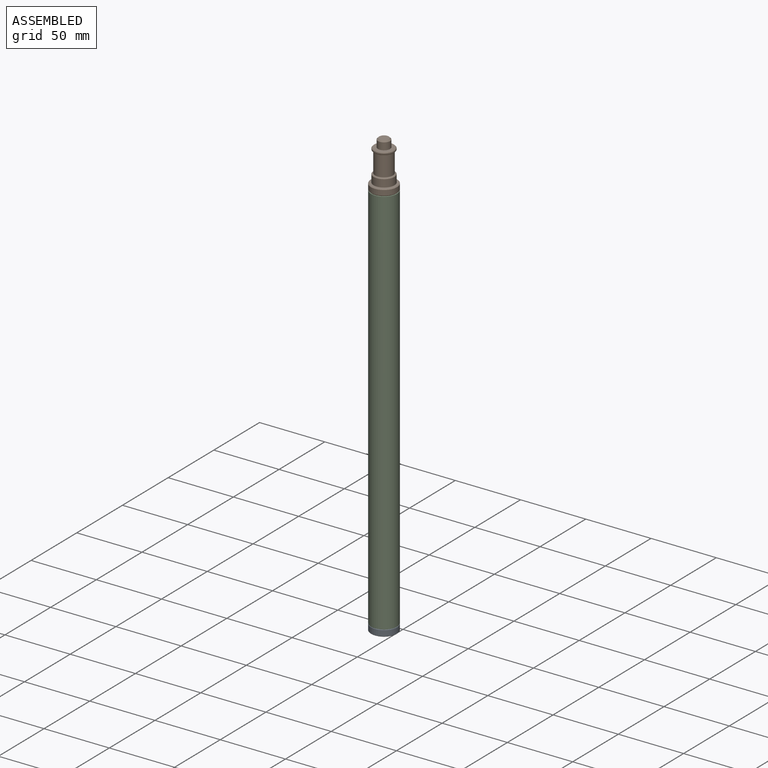
[diagram: assembled view]
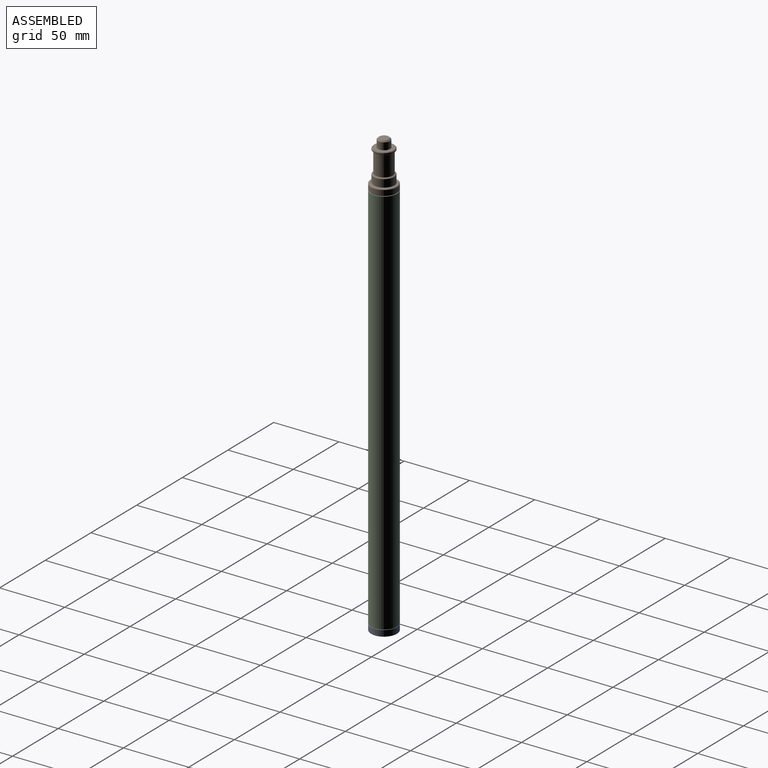
[diagram: assembled view, second angle]
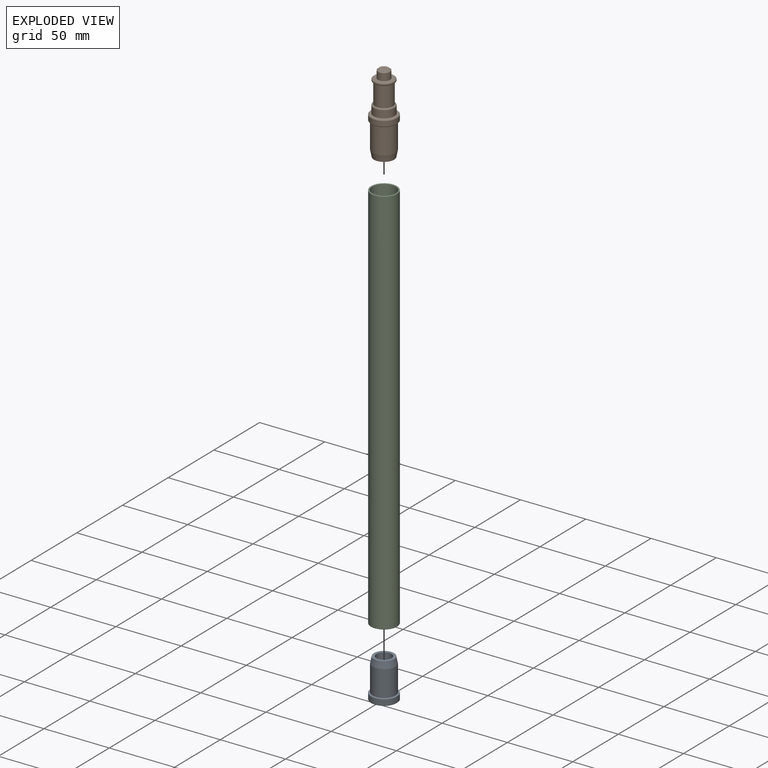
[diagram: exploded view]
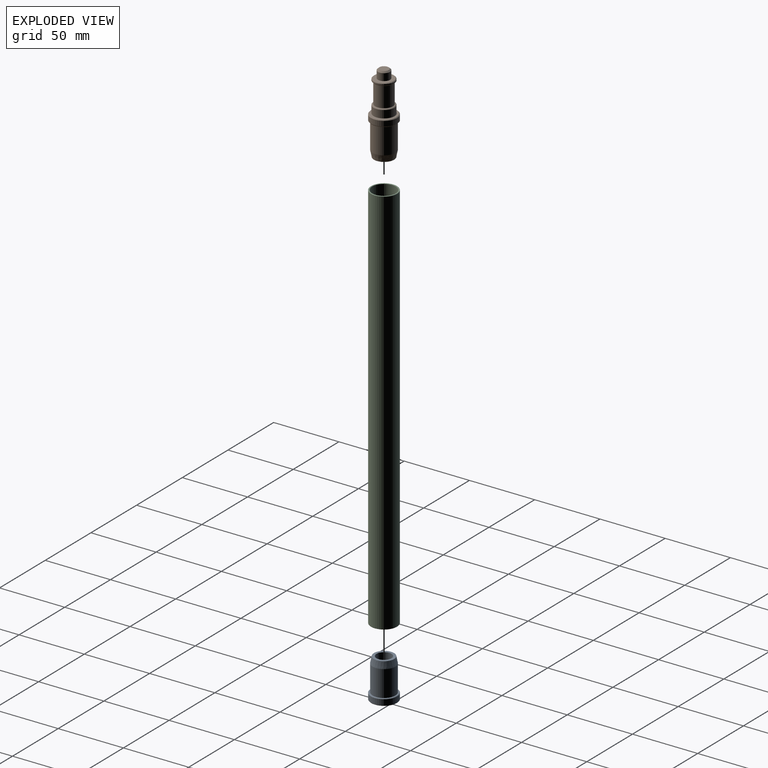
[diagram: exploded view, second angle]
ASSEMBLY  parts=3 mates=7
PART A: 11 faces, bbox 20x20x30 mm
  f0: plane 19.4x19.4mm, normal (0,0,-1), area 257.1mm2, adj f7,f8
  f1: cylinder r=10mm len=20mm, axis (0,0,1), area 276.5mm2, adj f8,f9
  f2: plane 19.4x19.4mm, normal (0,0,1), area 55.1mm2, adj f3,f9
  f3: cylinder r=8.75mm len=20mm, axis (0,0,1), area 1099.6mm2, adj f2,f10
  f4: plane 15.5x15.5mm, normal (0,0,1), area 84.8mm2, adj f5,f10
  f5: cylinder r=5.75mm len=22mm, axis (0,0,1), area 794.8mm2, adj f4,f6
  f6: plane 11.5x11.5mm, normal (0,0,1), area 65.4mm2, adj f5,f7
  f7: cylinder r=3.5mm len=8mm, axis (0,0,-1), area 175.9mm2, adj f0,f6
  f8: cone r=10mm half-angle=45deg, axis (0,0,1), area 26.3mm2, adj f0,f1
  f9: cone r=9.7mm half-angle=45deg, axis (0,0,-1), area 26.3mm2, adj f1,f2
  f10: cone r=7.75mm half-angle=11.3deg, axis (0,0,-1), area 264.3mm2, adj f3,f4
PART B: 26 faces, bbox 20.1x20.1x61 mm
  f0: plane 7.3x7.3mm, normal (0,0,1), area 41.9mm2, adj f25
  f1: cone r=6.75mm half-angle=60deg, axis (0,0,-1), area 165.3mm2, adj f2
  f2: cylinder r=6.75mm len=28mm, axis (0,0,1), area 1187.5mm2, adj f1,f3
  f3: plane 15.5x15.5mm, normal (0,0,-1), area 45.6mm2, adj f2,f24
  f4: cylinder r=8.75mm len=19.7mm, axis (0,0,1), area 1083.1mm2, adj f15,f24
  f5: plane 19x19mm, normal (0,0,-1), area 26.2mm2, adj f15,f22
  f6: cylinder r=10mm len=20mm, axis (0,0,1), area 251.3mm2, adj f22,f23
  f7: plane 19x19mm, normal (0,0,1), area 72.3mm2, adj f16,f23
  f8: cylinder r=7.9mm len=15.8mm, axis (0,0,1), area 282.9mm2, adj f16,f20
  f9: plane 14.8x14.8mm, normal (0,0,1), area 15.9mm2, adj f17,f20
  f10: cylinder r=6.75mm len=15.4mm, axis (0,0,1), area 653.1mm2, adj f17,f18
  f11: plane 14.8x14.8mm, normal (0,0,-1), area 15.9mm2, adj f18,f19
  f12: cylinder r=7.9mm len=15.8mm, axis (0,0,1), area 49.6mm2, adj f19,f21
  f13: plane 14.8x14.8mm, normal (0,0,1), area 104.1mm2, adj f14,f21
  f14: cylinder r=4.65mm len=9.3mm, axis (0,0,1), area 160.7mm2, adj f13,f25
  f15: torus R=9.05mm, axis (0,0,-1), area 26.2mm2, adj f4,f5
  f16: torus R=8.2mm, axis (0,0,1), area 23.7mm2, adj f7,f8
  f17: torus R=7.05mm, axis (0,0,1), area 20.3mm2, adj f9,f10
  f18: torus R=7.05mm, axis (0,0,-1), area 20.3mm2, adj f10,f11
  f19: cone r=7.9mm half-angle=45deg, axis (0,0,1), area 34mm2, adj f11,f12
  f20: cone r=7.4mm half-angle=45deg, axis (0,0,-1), area 34mm2, adj f8,f9
  f21: cone r=7.4mm half-angle=45deg, axis (0,0,-1), area 34mm2, adj f12,f13
  f22: cone r=10mm half-angle=45deg, axis (0,0,1), area 43.3mm2, adj f5,f6
  f23: cone r=9.5mm half-angle=45deg, axis (0,0,-1), area 43.3mm2, adj f6,f7
  f24: cone r=8.75mm half-angle=11.3deg, axis (0,0,1), area 264.3mm2, adj f3,f4
  f25: cone r=3.65mm half-angle=45deg, axis (0,0,-1), area 36.9mm2, adj f0,f14
PART C: 8 faces, bbox 21.6x21.6x300 mm
  f0: plane 19.6x19.6mm, normal (0,0,1), area 35.8mm2, adj f4,f7
  f1: cylinder r=9mm len=299.6mm, axis (0,0,1), area 16942mm2, adj f4,f5
  f2: plane 19.6x19.6mm, normal (0,0,-1), area 35.8mm2, adj f5,f6
  f3: cylinder r=10mm len=299.6mm, axis (0,0,1), area 18824.4mm2, adj f6,f7
  f4: torus R=9.2mm, axis (0,0,1), area 17.9mm2, adj f0,f1
  f5: torus R=9.2mm, axis (0,0,1), area 17.9mm2, adj f1,f2
  f6: torus R=9.8mm, axis (0,0,1), area 19.6mm2, adj f2,f3
  f7: torus R=9.8mm, axis (0,0,1), area 19.6mm2, adj f0,f3
PLACE A t=(6.19,-1.02,-51.81)mm
PLACE B t=(6.19,-1.02,258.19)mm
PLACE C t=(6.19,-1.02,-46.81)mm
MATE cylindrical A.f1 <-> C.f1  axis (0,0,1) through (6.19,-1.02,-36.81)mm
MATE parallel A.f1 <-> C.f1  axis (0,0,1) through (6.19,-1.02,-46.81)mm
MATE cylindrical B.f1 <-> C.f1  axis (0,0,-1) through (6.19,-1.02,253.69)mm
MATE parallel A.f1 <-> C.f1  axis (0,0,1) through (6.19,-1.02,-46.81)mm
MATE planar C.f1 <-> B.f1  axis (0,0,1) through (6.19,-1.02,253.19)mm
MATE parallel C.f1 <-> B.f1  axis (0,0,1) through (6.19,-1.02,253.19)mm
MATE planar C.f1 <-> A.f1  axis (0,0,-1) through (6.19,-1.02,-46.81)mm
